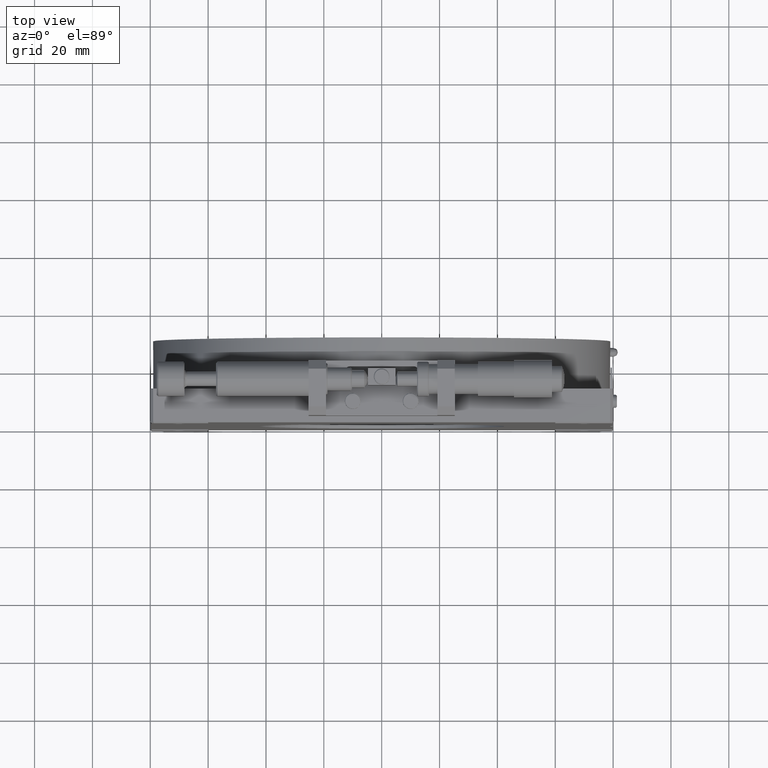
[diagram: clean part render]
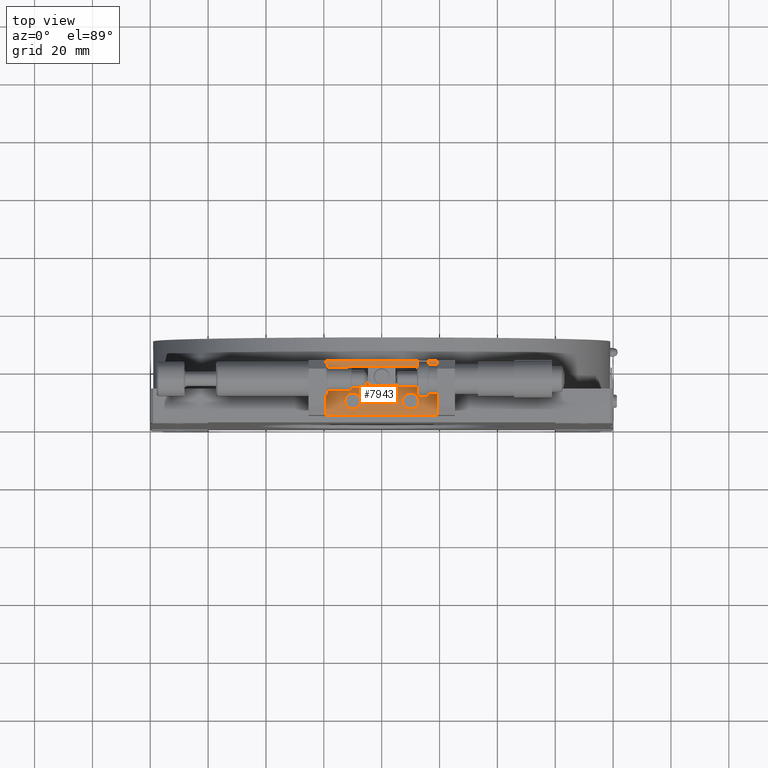
[diagram: same view with one face highlighted and labeled with its STEP entity id]
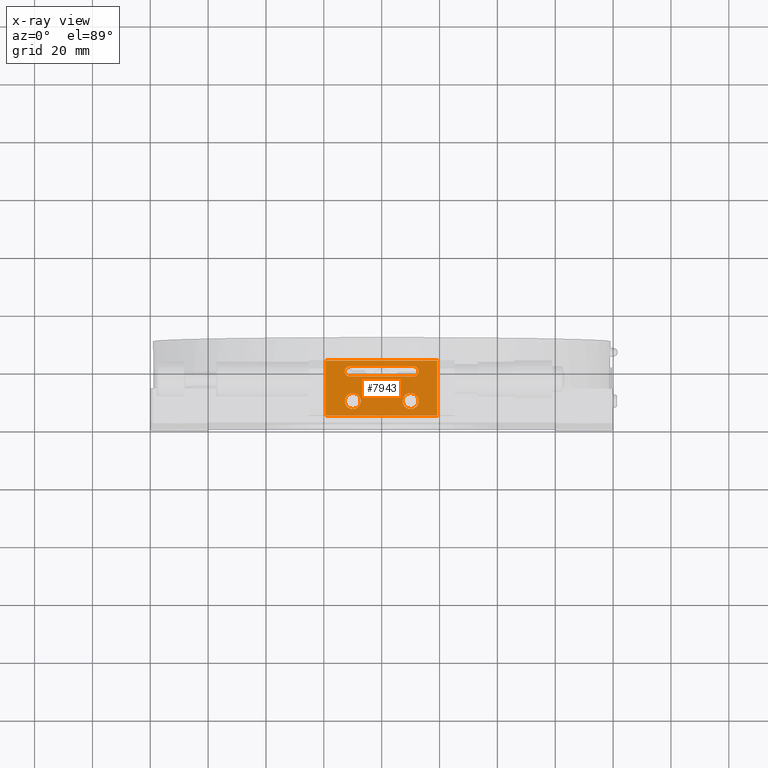
[diagram: x-ray of the same camera — body ghosted, the highlighted face saturated]
A machine part, top view. The second image highlights one B-rep face of the part: STEP entity #7943.
The next image is the same camera in x-ray: the body ghosted, the highlighted face saturated — about 0% of this face is hidden behind the body in this view.
In plain terms, the highlighted planar face has unit normal (0, 0, 1).
Its self-contained STEP definition (entity closure, byte-faithful):
#124 = EDGE_CURVE ( 'NONE', #9180, #9198, #5531, .T. ) ;
#181 = VERTEX_POINT ( 'NONE', #6348 ) ;
#426 = CARTESIAN_POINT ( 'NONE',  ( 67.25000000000000000, 17.75000000000000400, 168.5000000000000000 ) ) ;
#444 = CARTESIAN_POINT ( 'NONE',  ( 60.75000000000000000, 21.50000000000000000, 168.5000000000000000 ) ) ;
#458 = CARTESIAN_POINT ( 'NONE',  ( 69.00000000000000000, 19.50000000000000400, 168.5000000000000000 ) ) ;
#521 = CARTESIAN_POINT ( 'NONE',  ( 70.00000000000000000, 7.500000000000000000, 168.5000000000000000 ) ) ;
#533 = DIRECTION ( 'NONE',  ( -0.0000000000000000000, -0.0000000000000000000, -1.000000000000000000 ) ) ;
#534 = DIRECTION ( 'NONE',  ( 1.000000000000000000, 0.0000000000000000000, 0.0000000000000000000 ) ) ;
#561 = CARTESIAN_POINT ( 'NONE',  ( 90.00000000000000000, 7.500000000000000000, 168.5000000000000000 ) ) ;
#576 = DIRECTION ( 'NONE',  ( -0.0000000000000000000, -0.0000000000000000000, -1.000000000000000000 ) ) ;
#584 = DIRECTION ( 'NONE',  ( 1.000000000000000000, 0.0000000000000000000, 0.0000000000000000000 ) ) ;
#1590 = EDGE_LOOP ( 'NONE', ( #3399, #3178, #3169, #3386 ) ) ;
#1768 = DIRECTION ( 'NONE',  ( -1.000000000000000000, 0.0000000000000000000, 0.0000000000000000000 ) ) ;
#1769 = CARTESIAN_POINT ( 'NONE',  ( 91.00000000000000000, 17.75000000000000400, 168.5000000000000000 ) ) ;
#1772 = DIRECTION ( 'NONE',  ( -1.000000000000000000, 0.0000000000000000000, 0.0000000000000000000 ) ) ;
#1775 = DIRECTION ( 'NONE',  ( 0.0000000000000000000, 0.0000000000000000000, -1.000000000000000000 ) ) ;
#1780 = CARTESIAN_POINT ( 'NONE',  ( 69.00000000000000000, 17.75000000000000400, 168.5000000000000000 ) ) ;
#1801 = DIRECTION ( 'NONE',  ( 0.0000000000000000000, 0.0000000000000000000, -1.000000000000000000 ) ) ;
#1804 = DIRECTION ( 'NONE',  ( 1.000000000000000000, 0.0000000000000000000, 0.0000000000000000000 ) ) ;
#1817 = DIRECTION ( 'NONE',  ( -0.0000000000000000000, -0.0000000000000000000, -1.000000000000000000 ) ) ;
#1821 = CARTESIAN_POINT ( 'NONE',  ( 70.00000000000000000, 7.500000000000000000, 168.5000000000000000 ) ) ;
#1825 = DIRECTION ( 'NONE',  ( -1.000000000000000000, -0.0000000000000000000, 0.0000000000000000000 ) ) ;
#1830 = CARTESIAN_POINT ( 'NONE',  ( 99.25000000000000000, 16.00000000000000000, 168.5000000000000000 ) ) ;
#1861 = CARTESIAN_POINT ( 'NONE',  ( 99.25000000000000000, 19.50000000000000000, 168.5000000000000000 ) ) ;
#1863 = DIRECTION ( 'NONE',  ( 1.000000000000000000, 0.0000000000000000000, -0.0000000000000000000 ) ) ;
#2235 = CARTESIAN_POINT ( 'NONE',  ( 72.75000000000000000, 7.500000000000000000, 168.5000000000000000 ) ) ;
#2245 = CARTESIAN_POINT ( 'NONE',  ( 87.25000000000001400, 7.500000000000000000, 168.5000000000000000 ) ) ;
#2415 = PLANE ( 'NONE',  #8845 ) ;
#2430 = CARTESIAN_POINT ( 'NONE',  ( 99.25000000000000000, 25.25000000000000000, 168.5000000000000000 ) ) ;
#2435 = DIRECTION ( 'NONE',  ( 1.000000000000000000, 0.0000000000000000000, -0.0000000000000000000 ) ) ;
#2449 = DIRECTION ( 'NONE',  ( 0.0000000000000000000, 0.0000000000000000000, 1.000000000000000000 ) ) ;
#3169 = ORIENTED_EDGE ( 'NONE', *, *, #4068, .T. ) ;
#3171 = ORIENTED_EDGE ( 'NONE', *, *, #7457, .T. ) ;
#3175 = ORIENTED_EDGE ( 'NONE', *, *, #7448, .T. ) ;
#3178 = ORIENTED_EDGE ( 'NONE', *, *, #4075, .F. ) ;
#3181 = ORIENTED_EDGE ( 'NONE', *, *, #7439, .T. ) ;
#3209 = ORIENTED_EDGE ( 'NONE', *, *, #9256, .T. ) ;
#3213 = ORIENTED_EDGE ( 'NONE', *, *, #124, .T. ) ;
#3220 = ORIENTED_EDGE ( 'NONE', *, *, #9287, .T. ) ;
#3221 = ORIENTED_EDGE ( 'NONE', *, *, #7445, .T. ) ;
#3379 = ORIENTED_EDGE ( 'NONE', *, *, #7436, .T. ) ;
#3386 = ORIENTED_EDGE ( 'NONE', *, *, #4059, .F. ) ;
#3399 = ORIENTED_EDGE ( 'NONE', *, *, #4058, .T. ) ;
#3405 = ORIENTED_EDGE ( 'NONE', *, *, #7531, .T. ) ;
#3455 = CARTESIAN_POINT ( 'NONE',  ( 90.00000000000000000, 7.500000000000000000, 168.5000000000000000 ) ) ;
#3462 = DIRECTION ( 'NONE',  ( 1.000000000000000000, 0.0000000000000000000, 0.0000000000000000000 ) ) ;
#3468 = DIRECTION ( 'NONE',  ( -0.0000000000000000000, -0.0000000000000000000, -1.000000000000000000 ) ) ;
#3566 = CARTESIAN_POINT ( 'NONE',  ( 99.25000000000000000, 2.499999999999999100, 168.5000000000000000 ) ) ;
#3599 = CARTESIAN_POINT ( 'NONE',  ( 99.25000000000000000, 21.50000000000000000, 168.5000000000000000 ) ) ;
#3614 = CARTESIAN_POINT ( 'NONE',  ( 91.00000000000000000, 19.50000000000000400, 168.5000000000000000 ) ) ;
#4058 = EDGE_CURVE ( 'NONE', #7699, #9169, #5693, .T. ) ;
#4059 = EDGE_CURVE ( 'NONE', #7699, #7684, #5698, .T. ) ;
#4068 = EDGE_CURVE ( 'NONE', #4912, #7684, #5753, .T. ) ;
#4075 = EDGE_CURVE ( 'NONE', #4912, #9169, #5699, .T. ) ;
#4104 = VERTEX_POINT ( 'NONE', #6828 ) ;
#4106 = VERTEX_POINT ( 'NONE', #6833 ) ;
#4209 = VERTEX_POINT ( 'NONE', #6809 ) ;
#4276 = AXIS2_PLACEMENT_3D ( 'NONE', #561, #576, #584 ) ;
#4287 = AXIS2_PLACEMENT_3D ( 'NONE', #521, #533, #534 ) ;
#4912 = VERTEX_POINT ( 'NONE', #6127 ) ;
#5173 = CIRCLE ( 'NONE', #8975, 1.750000000000001600 ) ;
#5176 = VECTOR ( 'NONE', #1863, 1000.000000000000000 ) ;
#5195 = CIRCLE ( 'NONE', #9012, 1.750000000000001600 ) ;
#5201 = CIRCLE ( 'NONE', #8970, 2.749999999999988500 ) ;
#5211 = LINE ( 'NONE', #1830, #5212 ) ;
#5212 = VECTOR ( 'NONE', #1825, 1000.000000000000000 ) ;
#5230 = LINE ( 'NONE', #1861, #5176 ) ;
#5298 = CIRCLE ( 'NONE', #9040, 2.749999999999988500 ) ;
#5531 = CIRCLE ( 'NONE', #9252, 1.750000000000001600 ) ;
#5693 = LINE ( 'NONE', #6703, #5697 ) ;
#5697 = VECTOR ( 'NONE', #6695, 1000.000000000000000 ) ;
#5698 = LINE ( 'NONE', #6732, #5742 ) ;
#5699 = LINE ( 'NONE', #6752, #5737 ) ;
#5737 = VECTOR ( 'NONE', #6770, 1000.000000000000000 ) ;
#5738 = VECTOR ( 'NONE', #6699, 1000.000000000000000 ) ;
#5742 = VECTOR ( 'NONE', #6722, 1000.000000000000000 ) ;
#5753 = LINE ( 'NONE', #6730, #5738 ) ;
#6127 = CARTESIAN_POINT ( 'NONE',  ( 60.75000000000000000, 2.499999999999999100, 168.5000000000000000 ) ) ;
#6189 = CARTESIAN_POINT ( 'NONE',  ( 69.00000000000000000, 17.75000000000000400, 168.5000000000000000 ) ) ;
#6199 = DIRECTION ( 'NONE',  ( 0.0000000000000000000, 0.0000000000000000000, -1.000000000000000000 ) ) ;
#6200 = DIRECTION ( 'NONE',  ( -1.000000000000000000, 0.0000000000000000000, 0.0000000000000000000 ) ) ;
#6348 = CARTESIAN_POINT ( 'NONE',  ( 91.00000000000000000, 16.00000000000000000, 168.5000000000000000 ) ) ;
#6695 = DIRECTION ( 'NONE',  ( -1.000000000000000000, -0.0000000000000000000, 0.0000000000000000000 ) ) ;
#6699 = DIRECTION ( 'NONE',  ( 1.000000000000000000, 0.0000000000000000000, -0.0000000000000000000 ) ) ;
#6703 = CARTESIAN_POINT ( 'NONE',  ( 99.25000000000000000, 21.50000000000000000, 168.5000000000000000 ) ) ;
#6722 = DIRECTION ( 'NONE',  ( -0.0000000000000000000, -1.000000000000000000, 0.0000000000000000000 ) ) ;
#6730 = CARTESIAN_POINT ( 'NONE',  ( 105.2500000000000000, 2.500000000000000000, 168.5000000000000000 ) ) ;
#6732 = CARTESIAN_POINT ( 'NONE',  ( 99.25000000000000000, 25.25000000000000000, 168.5000000000000000 ) ) ;
#6752 = CARTESIAN_POINT ( 'NONE',  ( 60.75000000000000000, 25.25000000000000000, 168.5000000000000000 ) ) ;
#6770 = DIRECTION ( 'NONE',  ( -0.0000000000000000000, 1.000000000000000000, 0.0000000000000000000 ) ) ;
#6809 = CARTESIAN_POINT ( 'NONE',  ( 69.00000000000000000, 16.00000000000000000, 168.5000000000000000 ) ) ;
#6828 = CARTESIAN_POINT ( 'NONE',  ( 92.74999999999998600, 7.500000000000000000, 168.5000000000000000 ) ) ;
#6833 = CARTESIAN_POINT ( 'NONE',  ( 67.25000000000001400, 7.500000000000000000, 168.5000000000000000 ) ) ;
#7436 = EDGE_CURVE ( 'NONE', #7697, #181, #5195, .T. ) ;
#7439 = EDGE_CURVE ( 'NONE', #4209, #9180, #5173, .T. ) ;
#7445 = EDGE_CURVE ( 'NONE', #8037, #4106, #5201, .T. ) ;
#7448 = EDGE_CURVE ( 'NONE', #181, #4209, #5211, .T. ) ;
#7457 = EDGE_CURVE ( 'NONE', #9198, #7697, #5230, .T. ) ;
#7531 = EDGE_CURVE ( 'NONE', #4104, #8056, #5298, .T. ) ;
#7629 = EDGE_LOOP ( 'NONE', ( #3405, #3220 ) ) ;
#7635 = EDGE_LOOP ( 'NONE', ( #3379, #3175, #3181, #3213, #3171 ) ) ;
#7665 = EDGE_LOOP ( 'NONE', ( #3221, #3209 ) ) ;
#7684 = VERTEX_POINT ( 'NONE', #3566 ) ;
#7697 = VERTEX_POINT ( 'NONE', #3614 ) ;
#7699 = VERTEX_POINT ( 'NONE', #3599 ) ;
#7943 = ADVANCED_FACE ( 'NONE', ( #8503, #8496, #8500, #8511 ), #2415, .T. ) ;
#8037 = VERTEX_POINT ( 'NONE', #2235 ) ;
#8056 = VERTEX_POINT ( 'NONE', #2245 ) ;
#8226 = CIRCLE ( 'NONE', #4276, 2.749999999999988500 ) ;
#8249 = CIRCLE ( 'NONE', #4287, 2.749999999999988500 ) ;
#8496 = FACE_BOUND ( 'NONE', #7635, .T. ) ;
#8500 = FACE_BOUND ( 'NONE', #7665, .T. ) ;
#8503 = FACE_OUTER_BOUND ( 'NONE', #1590, .T. ) ;
#8511 = FACE_BOUND ( 'NONE', #7629, .T. ) ;
#8845 = AXIS2_PLACEMENT_3D ( 'NONE', #2430, #2449, #2435 ) ;
#8970 = AXIS2_PLACEMENT_3D ( 'NONE', #1821, #1817, #1804 ) ;
#8975 = AXIS2_PLACEMENT_3D ( 'NONE', #1780, #1801, #1768 ) ;
#9012 = AXIS2_PLACEMENT_3D ( 'NONE', #1769, #1775, #1772 ) ;
#9040 = AXIS2_PLACEMENT_3D ( 'NONE', #3455, #3468, #3462 ) ;
#9169 = VERTEX_POINT ( 'NONE', #444 ) ;
#9180 = VERTEX_POINT ( 'NONE', #426 ) ;
#9198 = VERTEX_POINT ( 'NONE', #458 ) ;
#9252 = AXIS2_PLACEMENT_3D ( 'NONE', #6189, #6199, #6200 ) ;
#9256 = EDGE_CURVE ( 'NONE', #4106, #8037, #8249, .T. ) ;
#9287 = EDGE_CURVE ( 'NONE', #8056, #4104, #8226, .T. ) ;